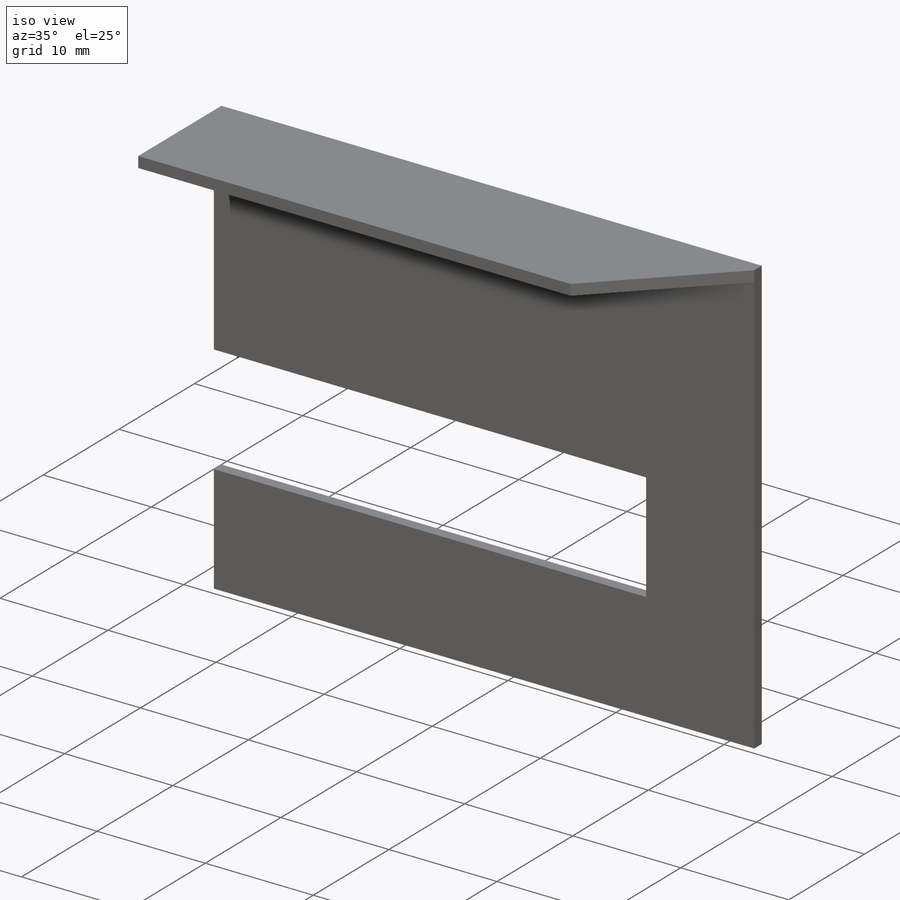
[diagram: iso view]
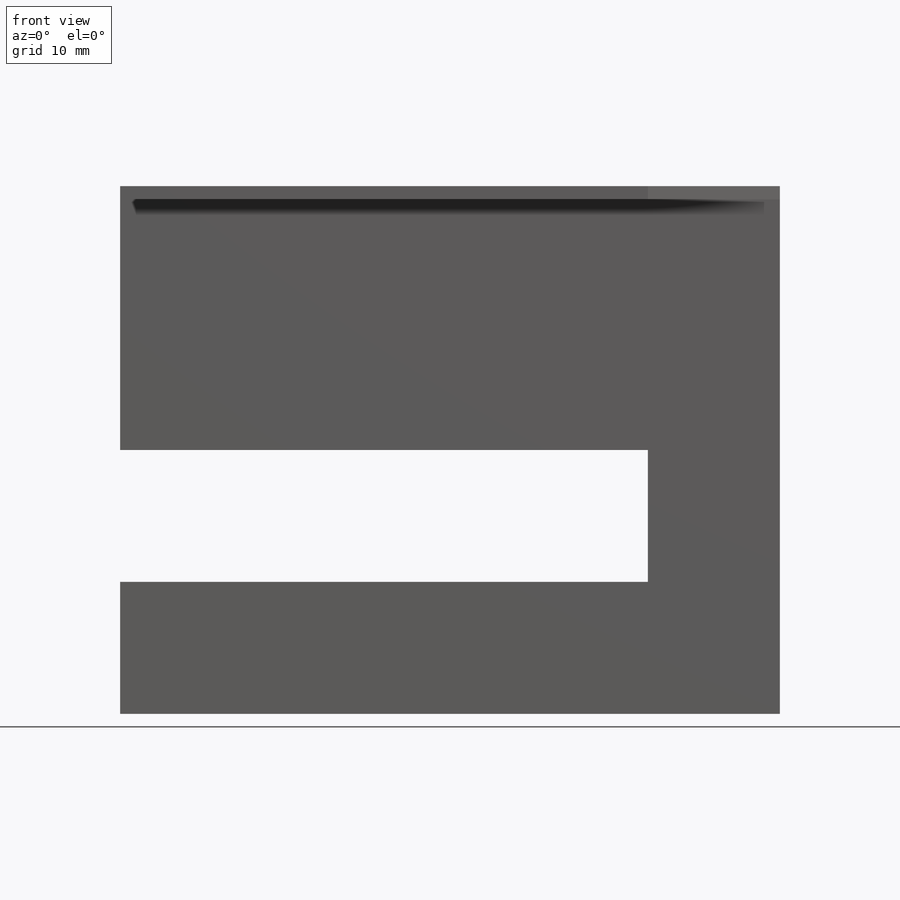
[diagram: front view]
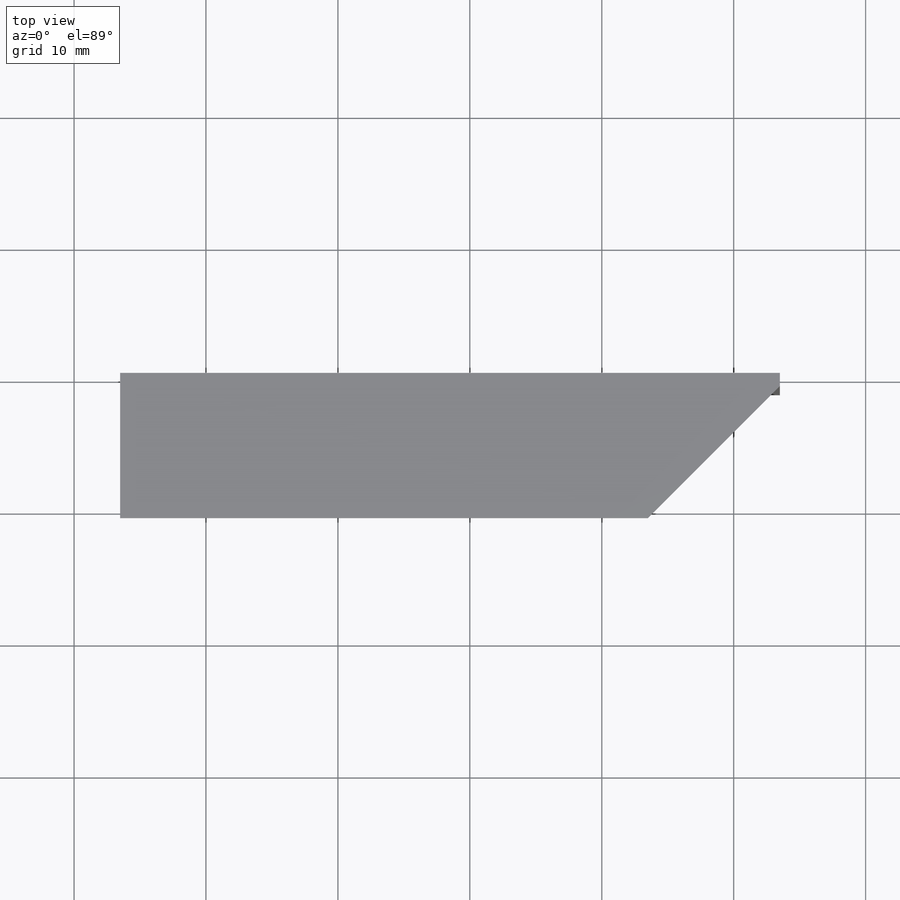
[diagram: top view]
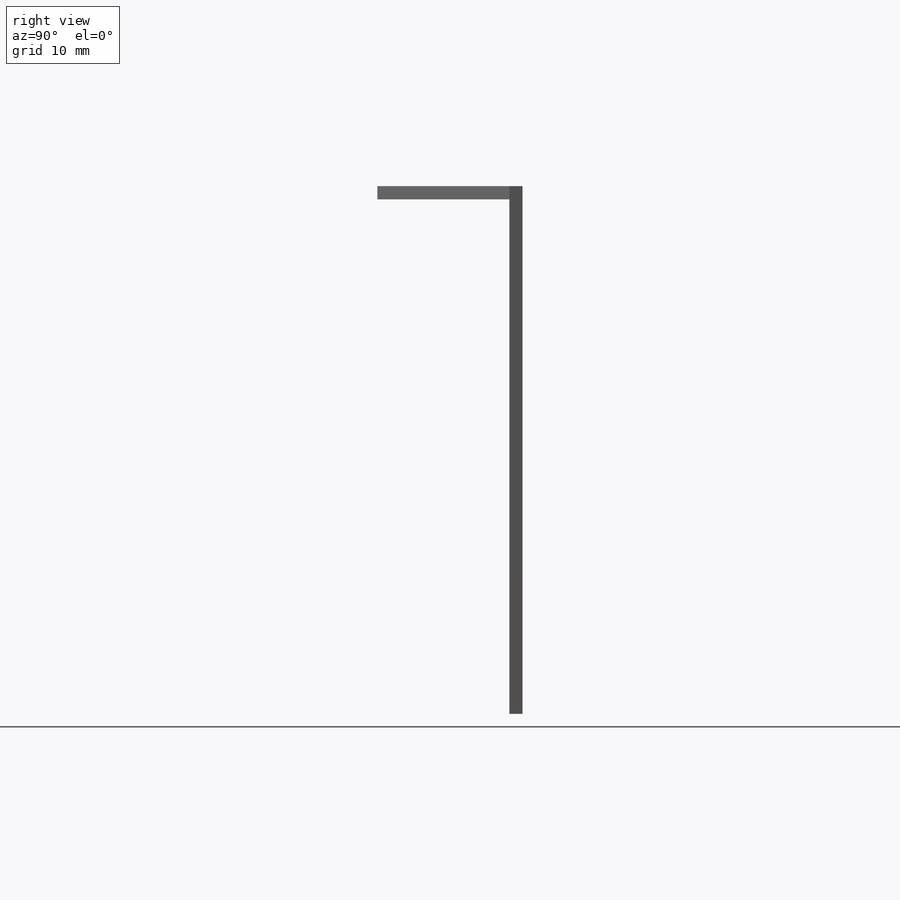
[diagram: right view]
SOLIDWORKS PART (.sldprt)
format: sldprt  version: not decoded by parser v0  size: 134,656 bytes
history: native  units: mm
features: plane x3, sketch x2, extrude x2, material x1, chamfer x1 (+10 scaffold rows collapsed)
feature tree (19):
  scaffold x10  (default folders/planes/origin — collapsed)
  material  "材质 <未指定>"
  plane  "前视基准面"
  plane  "上视基准面"
  plane  "右视基准面"
  sketch  "草图1"  dims[c1.D1=~53.878747mm c1.D2=~124.072888mm c2.D1=10.0mm c2.D2=40.0mm c2.D3=50.0mm]
  extrude  "凸台-拉伸1"  Depth=1mm
  sketch  "草图2"  dims[D1=~1.064123mm]
  extrude  "凸台-拉伸2"  Depth=10mm
  chamfer  "倒角1"  Distance=10mm Angle=45deg
decode coverage: 5 of 5 modeling features carry decoded parameters
note: ~ marks probable driven/reference dimensions
note: suppression state not decoded; provenance and decode notes live in map.json
